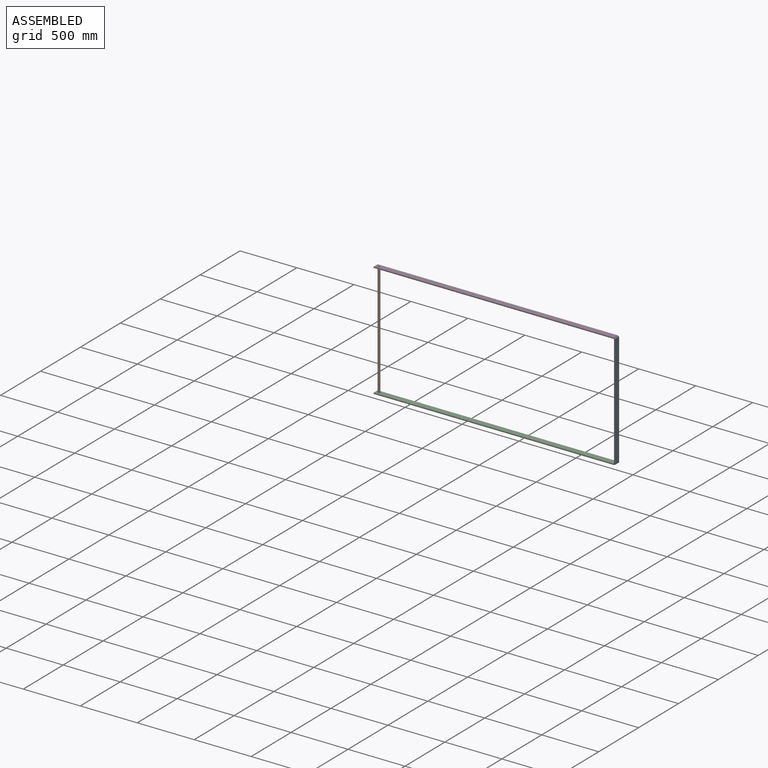
[diagram: assembled view]
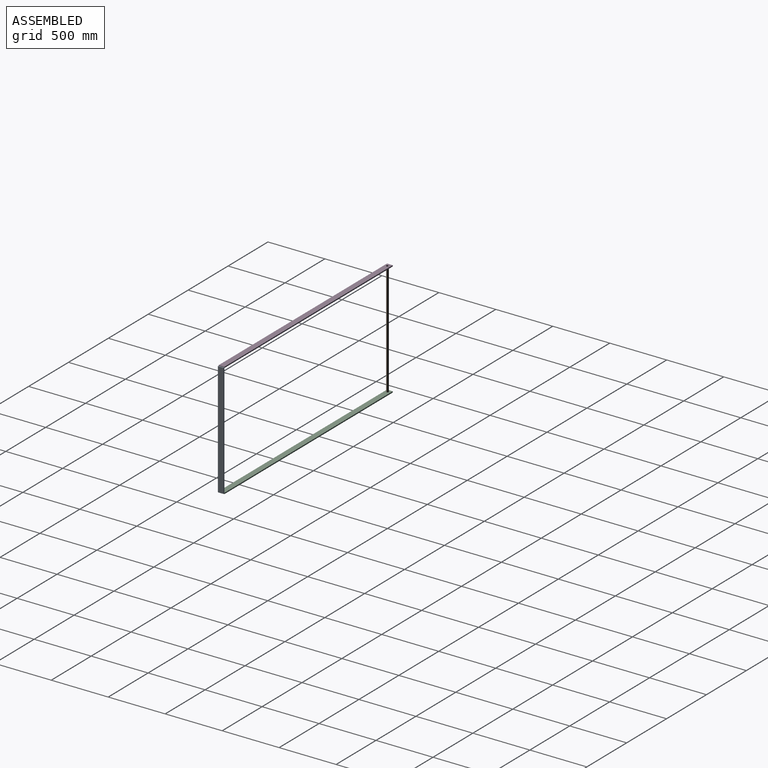
[diagram: assembled view, second angle]
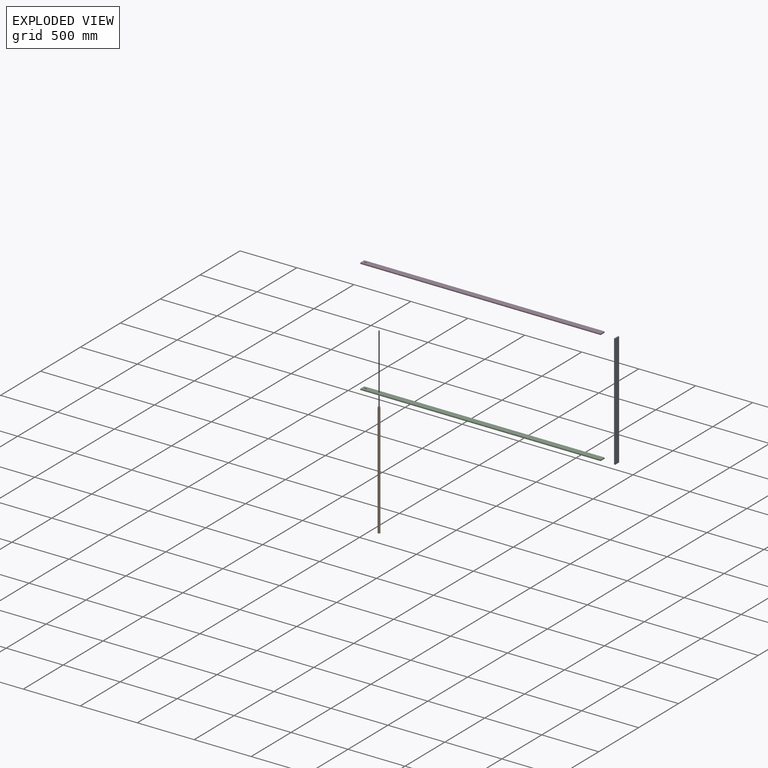
[diagram: exploded view]
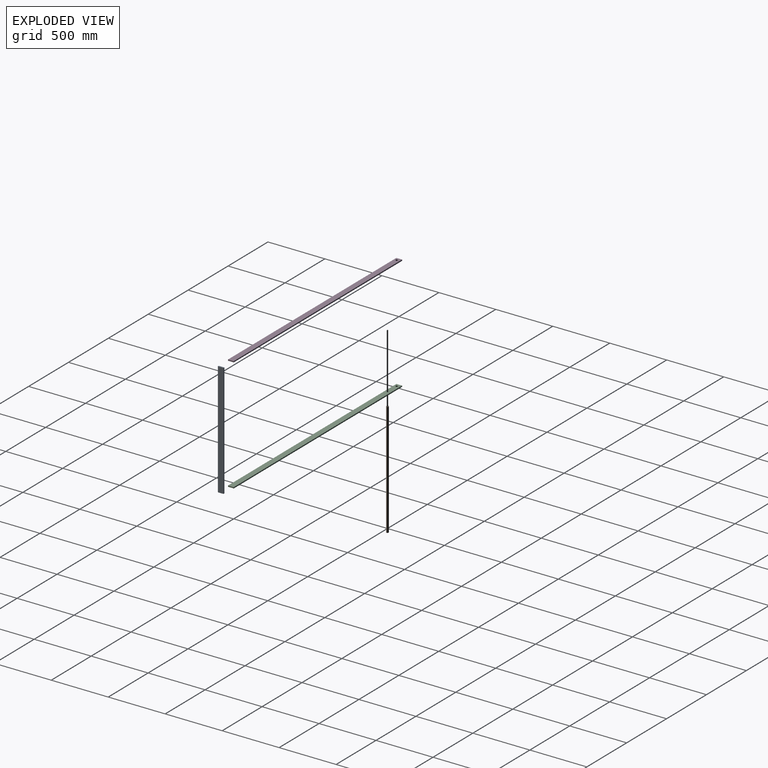
[diagram: exploded view, second angle]
ASSEMBLY  parts=4 mates=3
PART A: 6 faces, bbox 10x50x1000 mm
  f0: plane 50x10mm, normal (0,0,1), area 500mm2, adj f1,f3,f4,f5
  f1: plane 1000x10mm, normal (0,-1,0), area 10000mm2, adj f0,f2,f4,f5
  f2: plane 50x10mm, normal (0,0,-1), area 500mm2, adj f1,f3,f4,f5
  f3: plane 1000x10mm, normal (0,1,0), area 10000mm2, adj f0,f2,f4,f5
  f4: plane 1000x50mm, normal (1,0,0), area 50000mm2, adj f0,f1,f2,f3
  f5: plane 1000x50mm, normal (-1,0,0), area 50000mm2, adj f0,f1,f2,f3
PART B: 3 faces, bbox 20x90x998.9 mm
  f0: cylinder r=10mm len=998.95mm, axis (0,-0.07,-1), area 62831.9mm2, adj f1,f2
  f1: plane 20x19.95mm, normal (0,0.07,1), area 314.2mm2, adj f0
  f2: plane 20x19.95mm, normal (0,-0.07,-1), area 314.2mm2, adj f0
PART C: 7 faces, bbox 2110x50x10 mm
  f0: plane 2110x10mm, normal (0,-1,0), area 21100mm2, adj f1,f3,f4,f5
  f1: plane 50x10mm, normal (1,0,0), area 500mm2, adj f0,f2,f4,f5
  f2: plane 2110x10mm, normal (0,1,0), area 21100mm2, adj f1,f3,f4,f5
  f3: plane 50x10mm, normal (-1,0,0), area 500mm2, adj f0,f2,f4,f5
  f4: plane 2110x50mm, normal (0,0,1), area 105185.8mm2, adj f0,f1,f2,f3,f6
  f5: plane 2110x50mm, normal (0,0,-1), area 105185.8mm2, adj f0,f1,f2,f3,f6
  f6: cylinder r=10mm len=20mm, axis (0,0,1), area 628.3mm2, adj f4,f5
PART D: same geometry as C
PLACE A t=(2195.17,55.96,1135.38)mm
PLACE B rot(axis=(1,0,0),4deg) t=(115.01,80.96,130.38)mm fixed
PLACE C t=(1140.17,80.96,130.38)mm
PLACE D t=(1140.17,80.96,1130.38)mm
MATE revolute B.f0 <-> D.f6  axis (0,0,1) through (115.01,80.96,1130.38)mm
MATE planar A.f5 <-> C.f1  axis (-1,0,0) through (2195.17,80.96,135.38)mm
MATE planar D.f1 <-> A.f5  axis (1,0,0) through (2195.17,80.96,1135.38)mm
